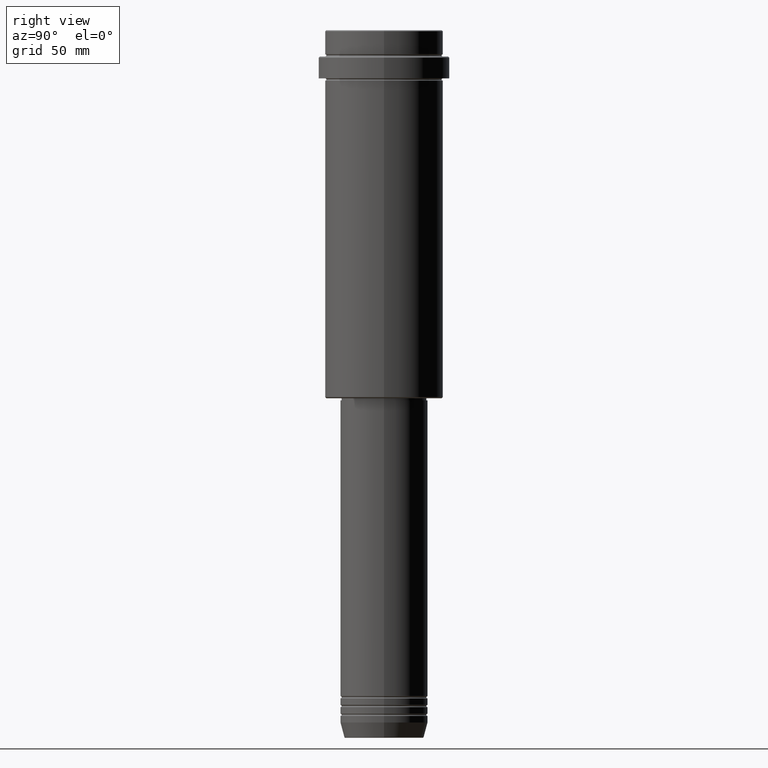
[diagram: clean part render]
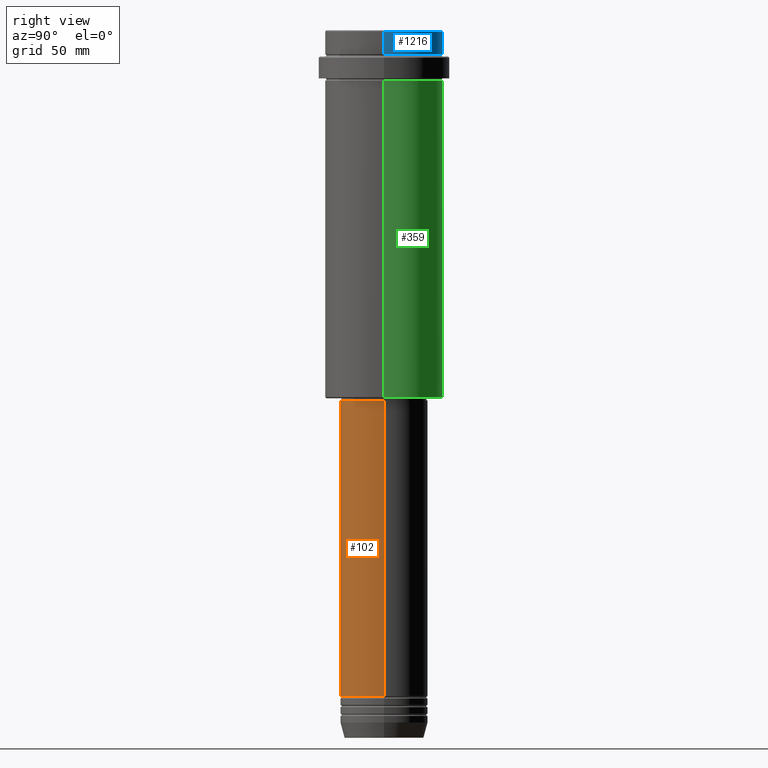
[diagram: same view with three faces highlighted in distinct colors, each labeled with its STEP entity id]
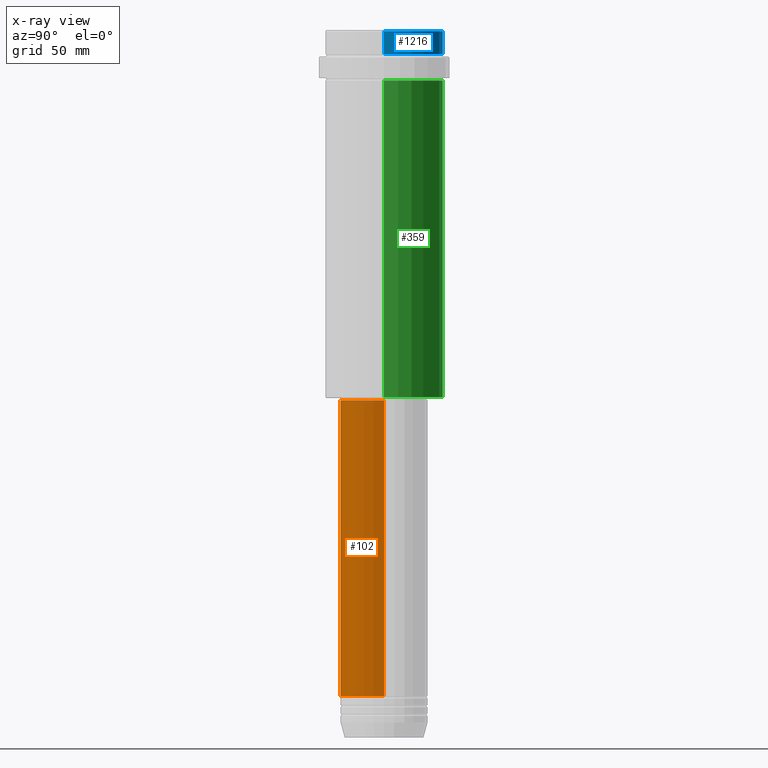
[diagram: x-ray of the same camera — body ghosted, the three highlighted faces saturated]
A machine part, right view with three faces highlighted in distinct colors.
The next image is the same camera in x-ray (body ghosted, the three faces saturated) — at least one of them is partly hidden behind the body in this view.
Their STEP definitions:

[orange] entity #102 — the highlighted cylindrical surface (partial cylindrical patch) has radius 20 mm, axis along (-0, -0, 1).
#52 = CARTESIAN_POINT ( 'NONE',  ( -19.99999999999999645, 2.449293598294706119E-15, 0.000000000000000000 ) ) ;
#59 = EDGE_CURVE ( 'NONE', #1288, #1199, #1162, .T. ) ;
#61 = DIRECTION ( 'NONE',  ( 1.000000000000000000, 0.000000000000000000, 0.000000000000000000 ) ) ;
#102 = ADVANCED_FACE ( 'NONE', ( #1208 ), #916, .T. ) ;
#113 = DIRECTION ( 'NONE',  ( -0.000000000000000000, -0.000000000000000000, 1.000000000000000000 ) ) ;
#250 = DIRECTION ( 'NONE',  ( 1.000000000000000000, 0.000000000000000000, 0.000000000000000000 ) ) ;
#273 = VERTEX_POINT ( 'NONE', #719 ) ;
#282 = CIRCLE ( 'NONE', #981, 19.99999999999999645 ) ;
#285 = CARTESIAN_POINT ( 'NONE',  ( 0.000000000000000000, 0.000000000000000000, -168.9999999999999147 ) ) ;
#288 = EDGE_CURVE ( 'NONE', #626, #273, #282, .T. ) ;
#342 = DIRECTION ( 'NONE',  ( -0.000000000000000000, -0.000000000000000000, 1.000000000000000000 ) ) ;
#473 = ORIENTED_EDGE ( 'NONE', *, *, #288, .F. ) ;
#498 = CARTESIAN_POINT ( 'NONE',  ( 19.99999999999999645, 0.000000000000000000, 0.000000000000000000 ) ) ;
#515 = DIRECTION ( 'NONE',  ( -0.000000000000000000, -0.000000000000000000, 1.000000000000000000 ) ) ;
#557 = CARTESIAN_POINT ( 'NONE',  ( 0.000000000000000000, 0.000000000000000000, 0.000000000000000000 ) ) ;
#561 = DIRECTION ( 'NONE',  ( 1.000000000000000000, 0.000000000000000000, 0.000000000000000000 ) ) ;
#626 = VERTEX_POINT ( 'NONE', #1202 ) ;
#662 = VECTOR ( 'NONE', #1261, 1000.000000000000000 ) ;
#719 = CARTESIAN_POINT ( 'NONE',  ( 19.99999999999999645, 0.000000000000000000, -168.9999999999999147 ) ) ;
#749 = AXIS2_PLACEMENT_3D ( 'NONE', #1333, #342, #250 ) ;
#805 = VECTOR ( 'NONE', #1157, 1000.000000000000000 ) ;
#822 = AXIS2_PLACEMENT_3D ( 'NONE', #557, #113, #561 ) ;
#855 = CARTESIAN_POINT ( 'NONE',  ( -20.00000000000000000, 2.449293598294706513E-15, -303.9999999999998863 ) ) ;
#889 = ORIENTED_EDGE ( 'NONE', *, *, #1200, .F. ) ;
#916 = CYLINDRICAL_SURFACE ( 'NONE', #822, 19.99999999999999645 ) ;
#936 = LINE ( 'NONE', #498, #805 ) ;
#981 = AXIS2_PLACEMENT_3D ( 'NONE', #285, #515, #61 ) ;
#1040 = LINE ( 'NONE', #52, #662 ) ;
#1083 = EDGE_CURVE ( 'NONE', #1199, #273, #936, .T. ) ;
#1108 = EDGE_LOOP ( 'NONE', ( #889, #1286, #1189, #473 ) ) ;
#1157 = DIRECTION ( 'NONE',  ( -0.000000000000000000, -0.000000000000000000, 1.000000000000000000 ) ) ;
#1162 = CIRCLE ( 'NONE', #749, 20.00000000000000000 ) ;
#1189 = ORIENTED_EDGE ( 'NONE', *, *, #1083, .T. ) ;
#1199 = VERTEX_POINT ( 'NONE', #1392 ) ;
#1200 = EDGE_CURVE ( 'NONE', #1288, #626, #1040, .T. ) ;
#1202 = CARTESIAN_POINT ( 'NONE',  ( -19.99999999999999645, 2.449293598294706119E-15, -168.9999999999999147 ) ) ;
#1208 = FACE_OUTER_BOUND ( 'NONE', #1108, .T. ) ;
#1261 = DIRECTION ( 'NONE',  ( -0.000000000000000000, -0.000000000000000000, 1.000000000000000000 ) ) ;
#1286 = ORIENTED_EDGE ( 'NONE', *, *, #59, .T. ) ;
#1288 = VERTEX_POINT ( 'NONE', #855 ) ;
#1333 = CARTESIAN_POINT ( 'NONE',  ( 0.000000000000000000, 0.000000000000000000, -303.9999999999998863 ) ) ;
#1392 = CARTESIAN_POINT ( 'NONE',  ( 20.00000000000000000, 0.000000000000000000, -303.9999999999998863 ) ) ;

[blue] entity #1216 — the highlighted cylindrical surface (partial cylindrical patch) has radius 27 mm, axis along (-0, -0, 1).
#4 = DIRECTION ( 'NONE',  ( 1.000000000000000000, 0.000000000000000000, 0.000000000000000000 ) ) ;
#9 = CARTESIAN_POINT ( 'NONE',  ( 26.99999999999999645, 0.000000000000000000, -11.00000000000000178 ) ) ;
#60 = ORIENTED_EDGE ( 'NONE', *, *, #108, .T. ) ;
#98 = CARTESIAN_POINT ( 'NONE',  ( 0.000000000000000000, 0.000000000000000000, -0.5000000000000038858 ) ) ;
#100 = ORIENTED_EDGE ( 'NONE', *, *, #176, .T. ) ;
#108 = EDGE_CURVE ( 'NONE', #1178, #201, #665, .T. ) ;
#176 = EDGE_CURVE ( 'NONE', #900, #1178, #486, .T. ) ;
#181 = AXIS2_PLACEMENT_3D ( 'NONE', #808, #1232, #567 ) ;
#201 = VERTEX_POINT ( 'NONE', #404 ) ;
#304 = CARTESIAN_POINT ( 'NONE',  ( -26.99999999999999645, 3.306546357697853339E-15, -11.00000000000000178 ) ) ;
#348 = CIRCLE ( 'NONE', #1207, 26.99999999999999645 ) ;
#396 = ORIENTED_EDGE ( 'NONE', *, *, #510, .F. ) ;
#404 = CARTESIAN_POINT ( 'NONE',  ( -26.99999999999999645, 3.306546357697853339E-15, -0.5000000000000038858 ) ) ;
#486 = CIRCLE ( 'NONE', #181, 26.99999999999999645 ) ;
#510 = EDGE_CURVE ( 'NONE', #900, #645, #770, .T. ) ;
#530 = DIRECTION ( 'NONE',  ( 1.000000000000000000, 0.000000000000000000, 0.000000000000000000 ) ) ;
#547 = CYLINDRICAL_SURFACE ( 'NONE', #781, 26.99999999999999645 ) ;
#567 = DIRECTION ( 'NONE',  ( 1.000000000000000000, 0.000000000000000000, 0.000000000000000000 ) ) ;
#580 = ORIENTED_EDGE ( 'NONE', *, *, #666, .T. ) ;
#645 = VERTEX_POINT ( 'NONE', #766 ) ;
#665 = LINE ( 'NONE', #680, #1181 ) ;
#666 = EDGE_CURVE ( 'NONE', #201, #645, #348, .T. ) ;
#680 = CARTESIAN_POINT ( 'NONE',  ( -26.99999999999999645, 3.306546357697853339E-15, 0.000000000000000000 ) ) ;
#766 = CARTESIAN_POINT ( 'NONE',  ( 26.99999999999999645, 0.000000000000000000, -0.5000000000000038858 ) ) ;
#770 = LINE ( 'NONE', #791, #960 ) ;
#777 = DIRECTION ( 'NONE',  ( -0.000000000000000000, -0.000000000000000000, 1.000000000000000000 ) ) ;
#781 = AXIS2_PLACEMENT_3D ( 'NONE', #1018, #903, #530 ) ;
#791 = CARTESIAN_POINT ( 'NONE',  ( 26.99999999999999645, 0.000000000000000000, 0.000000000000000000 ) ) ;
#808 = CARTESIAN_POINT ( 'NONE',  ( 0.000000000000000000, 0.000000000000000000, -11.00000000000000178 ) ) ;
#885 = DIRECTION ( 'NONE',  ( -0.000000000000000000, -0.000000000000000000, 1.000000000000000000 ) ) ;
#900 = VERTEX_POINT ( 'NONE', #9 ) ;
#903 = DIRECTION ( 'NONE',  ( -0.000000000000000000, -0.000000000000000000, 1.000000000000000000 ) ) ;
#960 = VECTOR ( 'NONE', #885, 1000.000000000000000 ) ;
#977 = FACE_OUTER_BOUND ( 'NONE', #1077, .T. ) ;
#1018 = CARTESIAN_POINT ( 'NONE',  ( 0.000000000000000000, 0.000000000000000000, 0.000000000000000000 ) ) ;
#1077 = EDGE_LOOP ( 'NONE', ( #100, #60, #580, #396 ) ) ;
#1178 = VERTEX_POINT ( 'NONE', #304 ) ;
#1181 = VECTOR ( 'NONE', #777, 1000.000000000000000 ) ;
#1207 = AXIS2_PLACEMENT_3D ( 'NONE', #98, #1300, #4 ) ;
#1216 = ADVANCED_FACE ( 'NONE', ( #977 ), #547, .T. ) ;
#1232 = DIRECTION ( 'NONE',  ( -0.000000000000000000, -0.000000000000000000, 1.000000000000000000 ) ) ;
#1300 = DIRECTION ( 'NONE',  ( 0.000000000000000000, 0.000000000000000000, -1.000000000000000000 ) ) ;

[green] entity #359 — the highlighted cylindrical surface (partial cylindrical patch) has radius 27 mm, axis along (-0, -0, 1).
#67 = AXIS2_PLACEMENT_3D ( 'NONE', #77, #522, #393 ) ;
#77 = CARTESIAN_POINT ( 'NONE',  ( 0.000000000000000000, 0.000000000000000000, -167.5000000000000284 ) ) ;
#148 = DIRECTION ( 'NONE',  ( -0.000000000000000000, -0.000000000000000000, 1.000000000000000000 ) ) ;
#202 = VECTOR ( 'NONE', #819, 1000.000000000000000 ) ;
#228 = ORIENTED_EDGE ( 'NONE', *, *, #299, .T. ) ;
#299 = EDGE_CURVE ( 'NONE', #784, #573, #507, .T. ) ;
#339 = VERTEX_POINT ( 'NONE', #519 ) ;
#353 = CARTESIAN_POINT ( 'NONE',  ( 26.99999999999999645, 0.000000000000000000, -23.00000000000000000 ) ) ;
#358 = CARTESIAN_POINT ( 'NONE',  ( 0.000000000000000000, 0.000000000000000000, -23.00000000000000000 ) ) ;
#359 = ADVANCED_FACE ( 'NONE', ( #956 ), #1400, .T. ) ;
#376 = CIRCLE ( 'NONE', #67, 26.99999999999999645 ) ;
#384 = CARTESIAN_POINT ( 'NONE',  ( 26.99999999999999645, 0.000000000000000000, 0.000000000000000000 ) ) ;
#393 = DIRECTION ( 'NONE',  ( -1.000000000000000000, 0.000000000000000000, 0.000000000000000000 ) ) ;
#507 = LINE ( 'NONE', #1270, #202 ) ;
#519 = CARTESIAN_POINT ( 'NONE',  ( 26.99999999999999645, 0.000000000000000000, -167.5000000000000284 ) ) ;
#522 = DIRECTION ( 'NONE',  ( -0.000000000000000000, -0.000000000000000000, 1.000000000000000000 ) ) ;
#573 = VERTEX_POINT ( 'NONE', #797 ) ;
#598 = EDGE_LOOP ( 'NONE', ( #973, #228, #1123, #1092 ) ) ;
#646 = DIRECTION ( 'NONE',  ( -0.000000000000000000, -0.000000000000000000, 1.000000000000000000 ) ) ;
#693 = LINE ( 'NONE', #384, #1188 ) ;
#706 = VERTEX_POINT ( 'NONE', #353 ) ;
#758 = AXIS2_PLACEMENT_3D ( 'NONE', #358, #646, #1398 ) ;
#784 = VERTEX_POINT ( 'NONE', #888 ) ;
#797 = CARTESIAN_POINT ( 'NONE',  ( -26.99999999999999645, 3.306546357697853339E-15, -23.00000000000000000 ) ) ;
#819 = DIRECTION ( 'NONE',  ( -0.000000000000000000, -0.000000000000000000, 1.000000000000000000 ) ) ;
#888 = CARTESIAN_POINT ( 'NONE',  ( -26.99999999999999645, 3.306546357697853339E-15, -167.5000000000000284 ) ) ;
#956 = FACE_OUTER_BOUND ( 'NONE', #598, .T. ) ;
#973 = ORIENTED_EDGE ( 'NONE', *, *, #1198, .T. ) ;
#974 = CARTESIAN_POINT ( 'NONE',  ( 0.000000000000000000, 0.000000000000000000, 0.000000000000000000 ) ) ;
#1092 = ORIENTED_EDGE ( 'NONE', *, *, #1377, .F. ) ;
#1120 = AXIS2_PLACEMENT_3D ( 'NONE', #974, #1192, #1415 ) ;
#1123 = ORIENTED_EDGE ( 'NONE', *, *, #1280, .F. ) ;
#1188 = VECTOR ( 'NONE', #148, 1000.000000000000000 ) ;
#1192 = DIRECTION ( 'NONE',  ( -0.000000000000000000, -0.000000000000000000, 1.000000000000000000 ) ) ;
#1198 = EDGE_CURVE ( 'NONE', #339, #784, #376, .T. ) ;
#1236 = CIRCLE ( 'NONE', #758, 26.99999999999999645 ) ;
#1270 = CARTESIAN_POINT ( 'NONE',  ( -26.99999999999999645, 3.306546357697853339E-15, 0.000000000000000000 ) ) ;
#1280 = EDGE_CURVE ( 'NONE', #706, #573, #1236, .T. ) ;
#1377 = EDGE_CURVE ( 'NONE', #339, #706, #693, .T. ) ;
#1398 = DIRECTION ( 'NONE',  ( 1.000000000000000000, 0.000000000000000000, 0.000000000000000000 ) ) ;
#1400 = CYLINDRICAL_SURFACE ( 'NONE', #1120, 26.99999999999999645 ) ;
#1415 = DIRECTION ( 'NONE',  ( 1.000000000000000000, 0.000000000000000000, 0.000000000000000000 ) ) ;